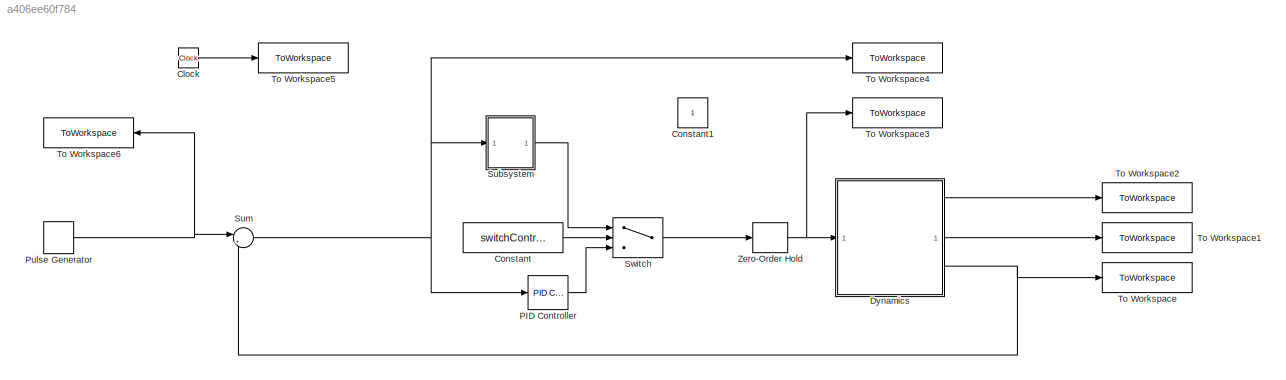
MODEL slx_a406ee60f784
KIND model
CONFIG AbsTol = auto
CONFIG EnableMultiTasking = off
CONFIG FixedStep = dt
CONFIG MaxStep = auto
CONFIG MinStep = auto
CONFIG RelTol = 1e-3
CONFIG SampleTimeConstraint = Unconstrained
CONFIG SolverName = ode4
CONFIG StartTime = t0
CONFIG StopTime = tfinal
BLOCK [Clock] Clock
BLOCK [Constant] Constant
  Value = switchController
BLOCK [Constant] Constant1
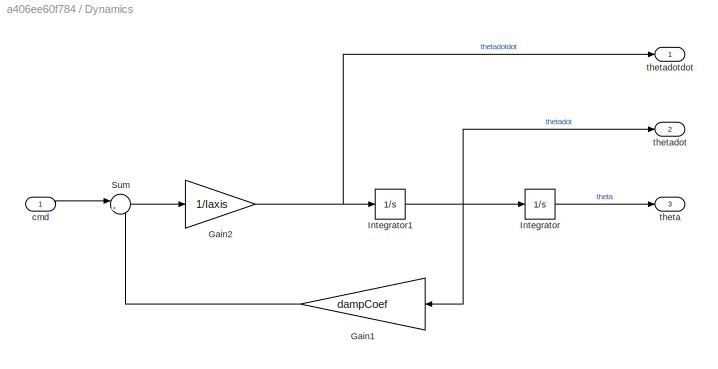
BLOCK [SubSystem] Dynamics
BLOCK [Gain] Dynamics/Gain1
  Gain = dampCoef
  NameLocation = top
BLOCK [Gain] Dynamics/Gain2
  Gain = 1/Iaxis
  NameLocation = top
BLOCK [Integrator] Dynamics/Integrator
  WrapState = on
BLOCK [Integrator] Dynamics/Integrator1
BLOCK [Sum] Dynamics/Sum
  Inputs = |+-
BLOCK [Inport] Dynamics/cmd
BLOCK [Outport] Dynamics/theta
  Port = 3
BLOCK [Outport] Dynamics/thetadot
  Port = 2
BLOCK [Outport] Dynamics/thetadotdot
BLOCK [Reference] PID Controller  REF=slpidlib/PID Controller
  LibrarySourceBlock = simulink/Continuous/PID Controller
  SourceBlock = slpidlib/PID Controller
  SourceType = PID 1dof
BLOCK [DiscretePulseGenerator] Pulse Generator
  Amplitude = inpAmp
  Period = inpPeriod
  PhaseDelay = inpPhaseDelay
  PulseType = Time based
  PulseWidth = inpPulseWidth
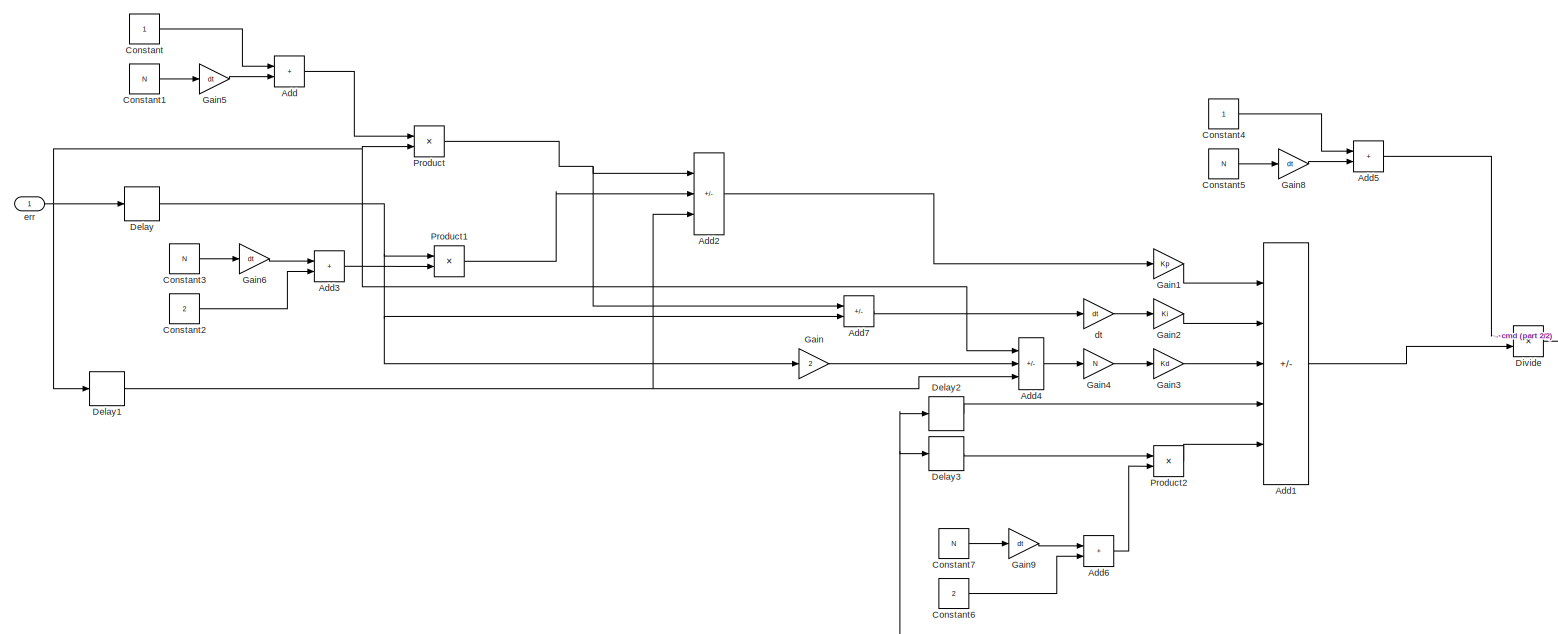
[diagram: Subsystem - part 1/2, most of the canvas]
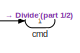
[diagram: Subsystem - part 2/2, middle right region]
BLOCK [SubSystem] Subsystem
BLOCK [Sum] Subsystem/Add
  IconShape = rectangular
BLOCK [Sum] Subsystem/Add1
  IconShape = rectangular
  Inputs = +++-+
BLOCK [Sum] Subsystem/Add2
  IconShape = rectangular
  Inputs = +-+
BLOCK [Sum] Subsystem/Add3
  IconShape = rectangular
BLOCK [Sum] Subsystem/Add4
  IconShape = rectangular
  Inputs = +-+
BLOCK [Sum] Subsystem/Add5
  IconShape = rectangular
BLOCK [Sum] Subsystem/Add6
  IconShape = rectangular
BLOCK [Sum] Subsystem/Add7
  IconShape = rectangular
  Inputs = +-
BLOCK [Constant] Subsystem/Constant
BLOCK [Constant] Subsystem/Constant1
  Value = N
BLOCK [Constant] Subsystem/Constant2
  Value = 2
BLOCK [Constant] Subsystem/Constant3
  Value = N
BLOCK [Constant] Subsystem/Constant4
BLOCK [Constant] Subsystem/Constant5
  Value = N
BLOCK [Constant] Subsystem/Constant6
  Value = 2
BLOCK [Constant] Subsystem/Constant7
  Value = N
BLOCK [Delay] Subsystem/Delay
  DelayLength = 1
  InputPortMap = u0
BLOCK [Delay] Subsystem/Delay1
  InputPortMap = u0
BLOCK [Delay] Subsystem/Delay2
  InputPortMap = u0
BLOCK [Delay] Subsystem/Delay3
  DelayLength = 1
  InputPortMap = u0
BLOCK [Product] Subsystem/Divide
  Inputs = /*
BLOCK [Gain] Subsystem/Gain
  Gain = 2
BLOCK [Gain] Subsystem/Gain1
  Gain = Kp
BLOCK [Gain] Subsystem/Gain2
  Gain = Ki
BLOCK [Gain] Subsystem/Gain3
  Gain = Kd
BLOCK [Gain] Subsystem/Gain4
  Gain = N
BLOCK [Gain] Subsystem/Gain5
  Gain = dt
BLOCK [Gain] Subsystem/Gain6
  Gain = dt
BLOCK [Gain] Subsystem/Gain8
  Gain = dt
BLOCK [Gain] Subsystem/Gain9
  Gain = dt
BLOCK [Product] Subsystem/Product
BLOCK [Product] Subsystem/Product1
BLOCK [Product] Subsystem/Product2
BLOCK [Outport] Subsystem/cmd
BLOCK [Gain] Subsystem/dt
  Gain = dt
BLOCK [Inport] Subsystem/err
BLOCK [Sum] Sum
  Inputs = |+-
BLOCK [Switch] Switch
  Criteria = u2 > Threshold
  InputSameDT = off
  SaturateOnIntegerOverflow = off
BLOCK [ToWorkspace] To Workspace
  FixptAsFi = on
  MaxDataPoints = inf
  SampleTime = -1
  VariableName = theta
BLOCK [ToWorkspace] To Workspace1
  FixptAsFi = on
  MaxDataPoints = inf
  SampleTime = -1
  VariableName = thetadot
BLOCK [ToWorkspace] To Workspace2
  FixptAsFi = on
  MaxDataPoints = inf
  SampleTime = -1
  VariableName = thetadotdot
BLOCK [ToWorkspace] To Workspace3
  FixptAsFi = on
  MaxDataPoints = inf
  SampleTime = -1
  VariableName = cmd
BLOCK [ToWorkspace] To Workspace4
  FixptAsFi = on
  MaxDataPoints = inf
  SampleTime = -1
  VariableName = error
BLOCK [ToWorkspace] To Workspace5
  FixptAsFi = on
  MaxDataPoints = inf
  SampleTime = -1
  VariableName = time
BLOCK [ToWorkspace] To Workspace6
  FixptAsFi = on
  MaxDataPoints = inf
  SampleTime = -1
  VariableName = input
BLOCK [ZeroOrderHold] Zero-Order Hold
  SampleTime = -1
LINE Clock:1 -> To Workspace5:1
LINE Constant:1 -> Switch:2
LINE Dynamics/Gain1:1 -> Dynamics/Sum:2
NET Dynamics/Gain2:1 -> Dynamics/Integrator1:1, Dynamics/thetadotdot:1
NET Dynamics/Integrator1:1 -> Dynamics/Gain1:1, Dynamics/Integrator:1, Dynamics/thetadot:1
LINE Dynamics/Integrator:1 -> Dynamics/theta:1
LINE Dynamics/Sum:1 -> Dynamics/Gain2:1
LINE Dynamics/cmd:1 -> Dynamics/Sum:1
LINE Dynamics:1 -> To Workspace2:1
LINE Dynamics:2 -> To Workspace1:1
NET Dynamics:3 -> Sum:2, To Workspace:1
LINE PID Controller:1 -> Switch:3
NET Pulse Generator:1 -> Sum:1, To Workspace6:1
LINE Subsystem/Add1:1 -> Subsystem/Divide:2
LINE Subsystem/Add2:1 -> Subsystem/Gain1:1
LINE Subsystem/Add3:1 -> Subsystem/Product1:2
LINE Subsystem/Add4:1 -> Subsystem/Gain4:1
LINE Subsystem/Add5:1 -> Subsystem/Divide:1
LINE Subsystem/Add6:1 -> Subsystem/Product2:2
LINE Subsystem/Add7:1 -> Subsystem/dt:1
LINE Subsystem/Add:1 -> Subsystem/Product:1
LINE Subsystem/Constant1:1 -> Subsystem/Gain5:1
LINE Subsystem/Constant2:1 -> Subsystem/Add3:2
LINE Subsystem/Constant3:1 -> Subsystem/Gain6:1
LINE Subsystem/Constant4:1 -> Subsystem/Add5:1
LINE Subsystem/Constant5:1 -> Subsystem/Gain8:1
LINE Subsystem/Constant6:1 -> Subsystem/Add6:2
LINE Subsystem/Constant7:1 -> Subsystem/Gain9:1
LINE Subsystem/Constant:1 -> Subsystem/Add:1
NET Subsystem/Delay1:1 -> Subsystem/Add2:3, Subsystem/Add4:3
LINE Subsystem/Delay2:1 -> Subsystem/Add1:4
LINE Subsystem/Delay3:1 -> Subsystem/Product2:1
NET Subsystem/Delay:1 -> Subsystem/Add7:2, Subsystem/Gain:1, Subsystem/Product1:1
NET Subsystem/Divide:1 -> Subsystem/Delay2:1, Subsystem/Delay3:1, Subsystem/cmd:1
LINE Subsystem/Gain1:1 -> Subsystem/Add1:1
LINE Subsystem/Gain2:1 -> Subsystem/Add1:2
LINE Subsystem/Gain3:1 -> Subsystem/Add1:3
LINE Subsystem/Gain4:1 -> Subsystem/Gain3:1
LINE Subsystem/Gain5:1 -> Subsystem/Add:2
LINE Subsystem/Gain6:1 -> Subsystem/Add3:1
LINE Subsystem/Gain8:1 -> Subsystem/Add5:2
LINE Subsystem/Gain9:1 -> Subsystem/Add6:1
LINE Subsystem/Gain:1 -> Subsystem/Add4:2
LINE Subsystem/Product1:1 -> Subsystem/Add2:2
LINE Subsystem/Product2:1 -> Subsystem/Add1:5
NET Subsystem/Product:1 -> Subsystem/Add2:1, Subsystem/Add7:1
LINE Subsystem/dt:1 -> Subsystem/Gain2:1
NET Subsystem/err:1 -> Subsystem/Add4:1, Subsystem/Delay1:1, Subsystem/Delay:1, Subsystem/Product:2
LINE Subsystem:1 -> Switch:1
NET Sum:1 -> PID Controller:1, Subsystem:1, To Workspace4:1
LINE Switch:1 -> Zero-Order Hold:1
NET Zero-Order Hold:1 -> Dynamics:1, To Workspace3:1
note: NET lines group one-source signal fan-out (src -> all destinations, sorted); 1:1 wires keep LINE
